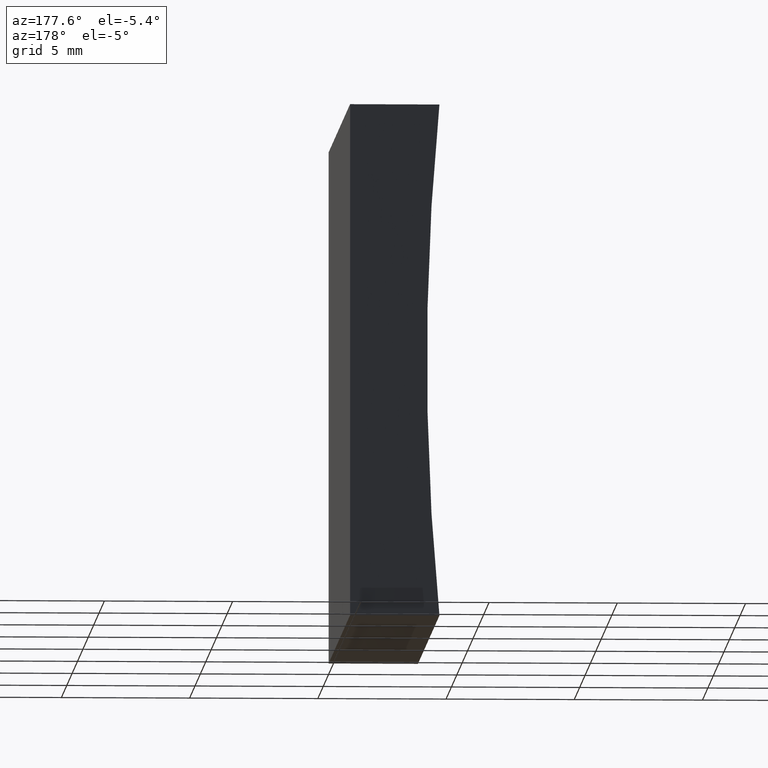
[diagram: clean part render]
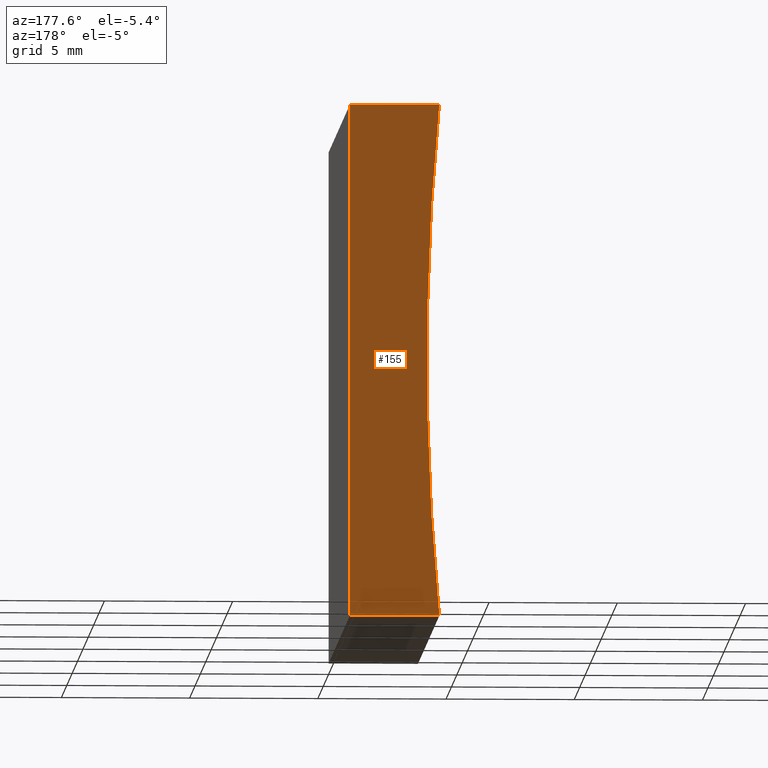
[diagram: same view with one face highlighted and labeled with its STEP entity id]
A machine part, auxiliary view. The second image highlights one B-rep face of the part: STEP entity #155.
In plain terms, the highlighted planar face has unit normal (0, 1, 0).
Its self-contained STEP definition (entity closure, byte-faithful):
#4 = VECTOR ( 'NONE', #156, 1000.000000000000000 ) ;
#8 = ORIENTED_EDGE ( 'NONE', *, *, #45, .T. ) ;
#16 = LINE ( 'NONE', #180, #128 ) ;
#23 = CARTESIAN_POINT ( 'NONE',  ( 1.224646799147353300E-015, 20.00000000000000000, 20.00000000000000000 ) ) ;
#24 = VERTEX_POINT ( 'NONE', #56 ) ;
#31 = DIRECTION ( 'NONE',  ( 0.0000000000000000000, 1.000000000000000000, 0.0000000000000000000 ) ) ;
#37 = VECTOR ( 'NONE', #88, 1000.000000000000000 ) ;
#45 = EDGE_CURVE ( 'NONE', #169, #24, #138, .T. ) ;
#56 = CARTESIAN_POINT ( 'NONE',  ( 0.0000000000000000000, 20.00000000000000000, 0.0000000000000000000 ) ) ;
#58 = CARTESIAN_POINT ( 'NONE',  ( -3.484695015755795200, 20.00000000000000000, 19.99999999999999600 ) ) ;
#64 = DIRECTION ( 'NONE',  ( -0.0000000000000000000, -1.000000000000000000, -0.0000000000000000000 ) ) ;
#69 = EDGE_CURVE ( 'NONE', #24, #157, #149, .T. ) ;
#88 = DIRECTION ( 'NONE',  ( -1.000000000000000000, 0.0000000000000000000, 9.956242759457456300E-016 ) ) ;
#89 = EDGE_LOOP ( 'NONE', ( #99, #193, #102, #8 ) ) ;
#91 = CARTESIAN_POINT ( 'NONE',  ( -106.4000000000000100, 20.00000000000000000, 10.00000000000001600 ) ) ;
#92 = CARTESIAN_POINT ( 'NONE',  ( 0.0000000000000000000, 20.00000000000000000, 0.0000000000000000000 ) ) ;
#99 = ORIENTED_EDGE ( 'NONE', *, *, #69, .T. ) ;
#102 = ORIENTED_EDGE ( 'NONE', *, *, #182, .T. ) ;
#103 = AXIS2_PLACEMENT_3D ( 'NONE', #91, #64, #135 ) ;
#119 = EDGE_CURVE ( 'NONE', #157, #123, #178, .T. ) ;
#123 = VERTEX_POINT ( 'NONE', #58 ) ;
#125 = AXIS2_PLACEMENT_3D ( 'NONE', #143, #31, #131 ) ;
#128 = VECTOR ( 'NONE', #183, 1000.000000000000000 ) ;
#131 = DIRECTION ( 'NONE',  ( 0.0000000000000000000, -0.0000000000000000000, 1.000000000000000000 ) ) ;
#135 = DIRECTION ( 'NONE',  ( 0.0000000000000000000, 0.0000000000000000000, 1.000000000000000000 ) ) ;
#138 = LINE ( 'NONE', #144, #4 ) ;
#143 = CARTESIAN_POINT ( 'NONE',  ( -106.4000000000000100, 20.00000000000000000, 10.00000000000001600 ) ) ;
#144 = CARTESIAN_POINT ( 'NONE',  ( 0.0000000000000000000, 20.00000000000000000, 0.0000000000000000000 ) ) ;
#149 = LINE ( 'NONE', #92, #37 ) ;
#155 = ADVANCED_FACE ( 'NONE', ( #194 ), #203, .T. ) ;
#156 = DIRECTION ( 'NONE',  ( -6.123233995736766000E-017, -0.0000000000000000000, -1.000000000000000000 ) ) ;
#157 = VERTEX_POINT ( 'NONE', #179 ) ;
#169 = VERTEX_POINT ( 'NONE', #23 ) ;
#178 = CIRCLE ( 'NONE', #103, 103.4000000000000200 ) ;
#179 = CARTESIAN_POINT ( 'NONE',  ( -3.484695015755795200, 20.00000000000000000, 1.040834085586084300E-014 ) ) ;
#180 = CARTESIAN_POINT ( 'NONE',  ( 1.224646799147353300E-015, 20.00000000000000000, 20.00000000000000000 ) ) ;
#182 = EDGE_CURVE ( 'NONE', #123, #169, #16, .T. ) ;
#183 = DIRECTION ( 'NONE',  ( 1.000000000000000000, -0.0000000000000000000, 9.956242759457458300E-016 ) ) ;
#193 = ORIENTED_EDGE ( 'NONE', *, *, #119, .T. ) ;
#194 = FACE_OUTER_BOUND ( 'NONE', #89, .T. ) ;
#203 = PLANE ( 'NONE',  #125 ) ;